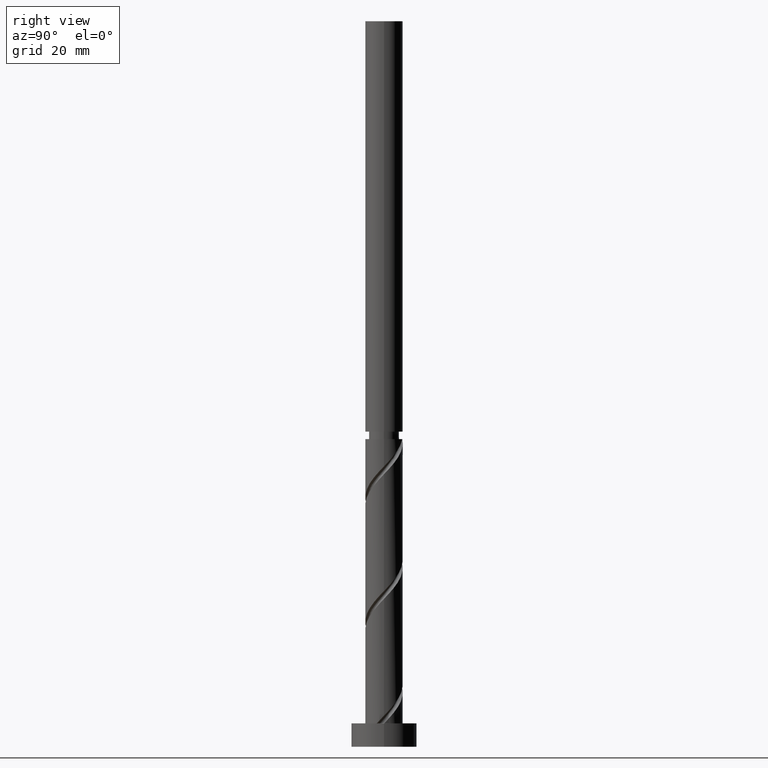
[diagram: clean part render]
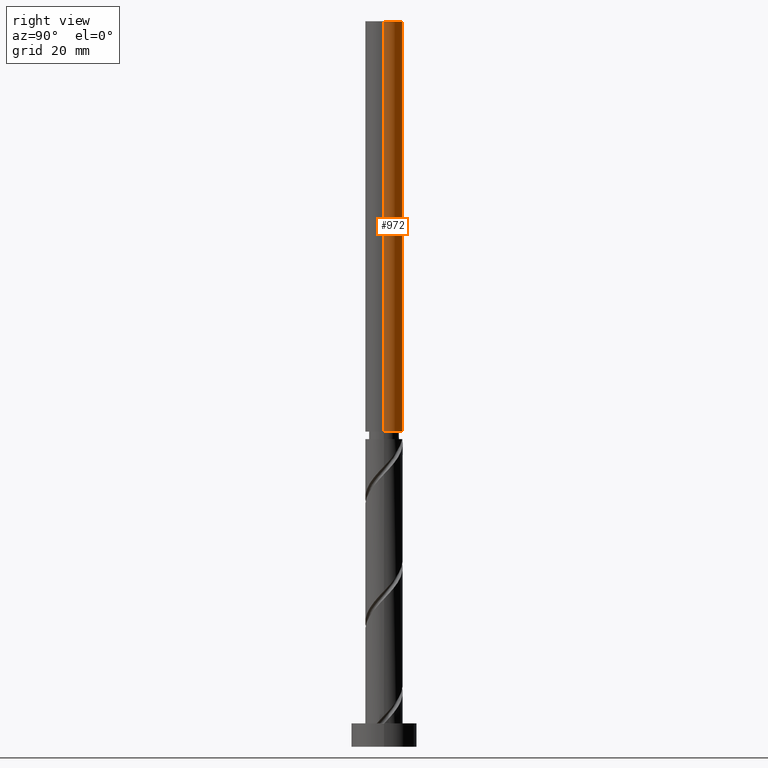
[diagram: same view with one face highlighted and labeled with its STEP entity id]
A machine part, right view. The second image highlights one B-rep face of the part: STEP entity #972.
In plain terms, the highlighted cylindrical surface (edge-blend (fillet) strip) has radius 4 mm, axis along (-0, -0, -1).
Its self-contained STEP definition (entity closure, byte-faithful):
#10 = DIRECTION ( 'NONE',  ( -1.000000000000000000, 0.000000000000000000, 0.000000000000000000 ) ) ;
#34 = VECTOR ( 'NONE', #1289, 1000.000000000000000 ) ;
#88 = LINE ( 'NONE', #1138, #34 ) ;
#189 = CARTESIAN_POINT ( 'NONE',  ( 0.000000000000000000, 0.000000000000000000, 155.2000000000000171 ) ) ;
#268 = CARTESIAN_POINT ( 'NONE',  ( 4.000000000000000000, 4.898587196589412829E-16, 155.2000000000000171 ) ) ;
#334 = LINE ( 'NONE', #800, #583 ) ;
#435 = ORIENTED_EDGE ( 'NONE', *, *, #1230, .T. ) ;
#471 = ORIENTED_EDGE ( 'NONE', *, *, #629, .F. ) ;
#486 = CIRCLE ( 'NONE', #1841, 4.000000000000000000 ) ;
#492 = VERTEX_POINT ( 'NONE', #268 ) ;
#583 = VECTOR ( 'NONE', #1410, 1000.000000000000000 ) ;
#588 = DIRECTION ( 'NONE',  ( -0.000000000000000000, -0.000000000000000000, -1.000000000000000000 ) ) ;
#596 = DIRECTION ( 'NONE',  ( -0.000000000000000000, -0.000000000000000000, -1.000000000000000000 ) ) ;
#621 = FACE_OUTER_BOUND ( 'NONE', #1522, .T. ) ;
#629 = EDGE_CURVE ( 'NONE', #706, #919, #88, .T. ) ;
#706 = VERTEX_POINT ( 'NONE', #1733 ) ;
#800 = CARTESIAN_POINT ( 'NONE',  ( 4.000000000000000000, 4.898587196589412829E-16, 155.2000000000000171 ) ) ;
#900 = CIRCLE ( 'NONE', #1562, 4.000000000000003553 ) ;
#919 = VERTEX_POINT ( 'NONE', #1033 ) ;
#963 = DIRECTION ( 'NONE',  ( 1.000000000000000000, 0.000000000000000000, 0.000000000000000000 ) ) ;
#972 = ADVANCED_FACE ( 'NONE', ( #621 ), #1489, .T. ) ;
#1029 = ORIENTED_EDGE ( 'NONE', *, *, #1264, .F. ) ;
#1033 = CARTESIAN_POINT ( 'NONE',  ( -4.000000000000003553, 0.000000000000000000, 67.42039885736089389 ) ) ;
#1047 = ORIENTED_EDGE ( 'NONE', *, *, #1854, .F. ) ;
#1138 = CARTESIAN_POINT ( 'NONE',  ( -4.000000000000000000, 0.000000000000000000, 155.2000000000000171 ) ) ;
#1222 = AXIS2_PLACEMENT_3D ( 'NONE', #1351, #588, #1679 ) ;
#1230 = EDGE_CURVE ( 'NONE', #492, #1293, #334, .T. ) ;
#1264 = EDGE_CURVE ( 'NONE', #492, #706, #486, .T. ) ;
#1289 = DIRECTION ( 'NONE',  ( -0.000000000000000000, -0.000000000000000000, -1.000000000000000000 ) ) ;
#1293 = VERTEX_POINT ( 'NONE', #1510 ) ;
#1351 = CARTESIAN_POINT ( 'NONE',  ( 0.000000000000000000, 0.000000000000000000, 155.2000000000000171 ) ) ;
#1410 = DIRECTION ( 'NONE',  ( -0.000000000000000000, -0.000000000000000000, -1.000000000000000000 ) ) ;
#1489 = CYLINDRICAL_SURFACE ( 'NONE', #1222, 4.000000000000000000 ) ;
#1510 = CARTESIAN_POINT ( 'NONE',  ( 4.000000000000003553, 4.898587196589417759E-16, 67.42039885736089389 ) ) ;
#1522 = EDGE_LOOP ( 'NONE', ( #1029, #435, #1047, #471 ) ) ;
#1562 = AXIS2_PLACEMENT_3D ( 'NONE', #1817, #596, #10 ) ;
#1579 = DIRECTION ( 'NONE',  ( 0.000000000000000000, 0.000000000000000000, 1.000000000000000000 ) ) ;
#1679 = DIRECTION ( 'NONE',  ( -1.000000000000000000, 0.000000000000000000, 0.000000000000000000 ) ) ;
#1733 = CARTESIAN_POINT ( 'NONE',  ( -4.000000000000000000, 0.000000000000000000, 155.2000000000000171 ) ) ;
#1817 = CARTESIAN_POINT ( 'NONE',  ( 0.000000000000000000, 0.000000000000000000, 67.42039885736089389 ) ) ;
#1841 = AXIS2_PLACEMENT_3D ( 'NONE', #189, #1579, #963 ) ;
#1854 = EDGE_CURVE ( 'NONE', #919, #1293, #900, .T. ) ;